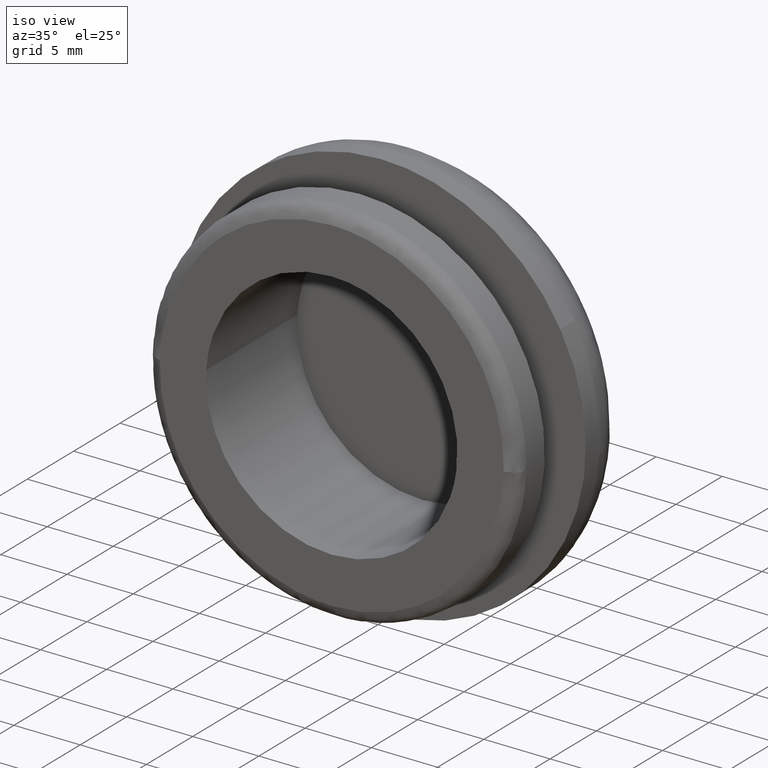
[diagram: clean part render]
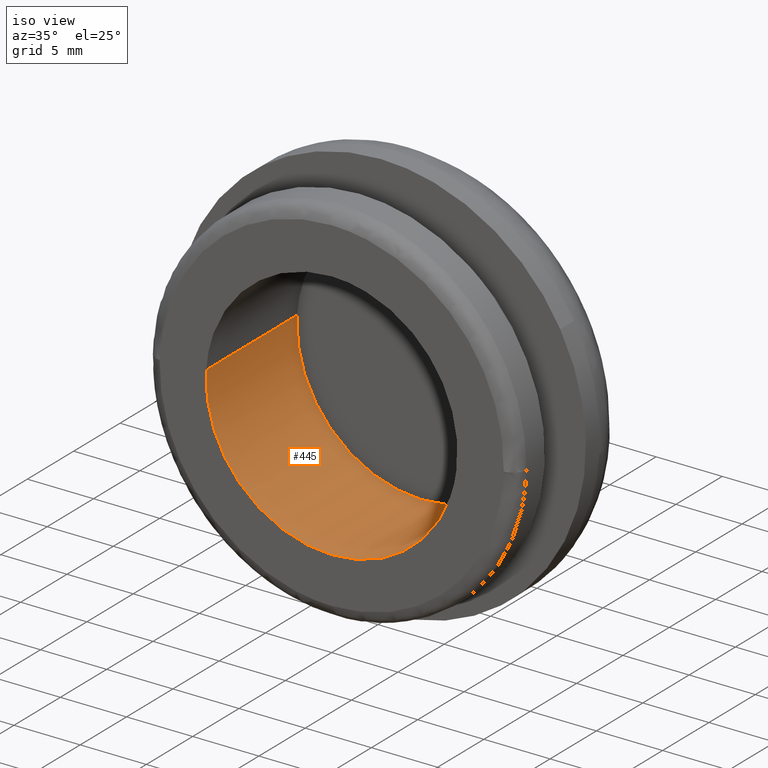
[diagram: same view with one face highlighted and labeled with its STEP entity id]
A machine part, iso view. The second image highlights one B-rep face of the part: STEP entity #445.
In plain terms, the highlighted face is a freeform B-spline surface patch.
Its self-contained STEP definition (entity closure, byte-faithful):
#282=CARTESIAN_POINT('',(9.433591982895113,2.238239E-014,-1.121312757485301));
#283=VERTEX_POINT('',#282);
#301=CARTESIAN_POINT('',(-9.482280755237859,6.371673E-015,0.579958342329812));
#302=VERTEX_POINT('',#301);
#316=CARTESIAN_POINT('',(-9.482280753140211,9.800000000000001,0.579958376626383));
#317=VERTEX_POINT('',#316);
#318=CARTESIAN_POINT('',(-9.482280753140211,9.800000000000001,0.579958376626383));
#319=CARTESIAN_POINT('',(-9.482280755237859,6.371673E-015,0.579958342329812));
#320=QUASI_UNIFORM_CURVE('',1,(#318,#319),.UNSPECIFIED.,.F.,.U.);
#321=EDGE_CURVE('',#317,#302,#320,.T.);
#338=CARTESIAN_POINT('',(9.433591964607842,9.800000000000001,-1.121312911337627));
#339=VERTEX_POINT('',#338);
#355=CARTESIAN_POINT('',(9.433591964607842,9.800000000000001,-1.121312911337627));
#356=CARTESIAN_POINT('',(9.433591982895113,2.238239E-014,-1.121312757485301));
#357=QUASI_UNIFORM_CURVE('',1,(#355,#356),.UNSPECIFIED.,.F.,.U.);
#358=EDGE_CURVE('',#339,#283,#357,.T.);
#363=CARTESIAN_POINT('',(-9.482280585007734,10.045000000000000,0.579961125581141));
#364=CARTESIAN_POINT('',(-10.062241710588875,10.045000000000003,-8.902319459426593));
#365=CARTESIAN_POINT('',(-0.579961125581141,10.045000000000000,-9.482280585007734));
#366=CARTESIAN_POINT('',(8.374663162975260,10.045000000000002,-10.029968868959012));
#367=CARTESIAN_POINT('',(9.433590500454830,10.045000000000005,-1.121325229239206));
#368=CARTESIAN_POINT('',(-9.482280585007734,-0.251125000000002,0.579961125581141));
#369=CARTESIAN_POINT('',(-10.062241710588875,-0.251125000000002,-8.902319459426593));
#370=CARTESIAN_POINT('',(-0.579961125581141,-0.251125000000002,-9.482280585007734));
#371=CARTESIAN_POINT('',(8.374663162975260,-0.251125000000002,-10.029968868959012));
#372=CARTESIAN_POINT('',(9.433590500454830,-0.251125000000002,-1.121325229239206));
#380=(BOUNDED_SURFACE()B_SPLINE_SURFACE(2,1,((#363,#368),(#364,#369),(#365,#370),(#366,#371),(#367,#372)),.UNSPECIFIED.,.F.,.F.,.U.)B_SPLINE_SURFACE_WITH_KNOTS((3,2,3),(2,2),(0.0,15.740115370177611,30.850626125548111),(0.0,10.296125000000011),.UNSPECIFIED.)GEOMETRIC_REPRESENTATION_ITEM()RATIONAL_B_SPLINE_SURFACE(((1.0,1.0),(0.707106781186548,0.707106781186548),(1.0,1.0),(0.718822509939086,0.718822509939086),(0.977505800795127,0.977505800795127)))REPRESENTATION_ITEM('')SURFACE());
#381=CARTESIAN_POINT('',(0.0,-1.745064E-015,-9.500000000000000));
#382=VERTEX_POINT('',#381);
#383=CARTESIAN_POINT('',(0.0,-1.745064E-015,-9.500000000000000));
#384=CARTESIAN_POINT('',(8.437669230144374,-1.745064E-015,-9.499999999999998));
#385=CARTESIAN_POINT('',(9.433591982895113,2.238239E-014,-1.121312757485301));
#393=(BOUNDED_CURVE()B_SPLINE_CURVE(2,(#383,#384,#385),.UNSPECIFIED.,.F.,.U.)B_SPLINE_CURVE_WITH_KNOTS((3,3),(0.0,0.229562696947761),.UNSPECIFIED.)CURVE()GEOMETRIC_REPRESENTATION_ITEM()RATIONAL_B_SPLINE_CURVE((1.0,0.731050571085892,0.956027192124447))REPRESENTATION_ITEM(''));
#394=EDGE_CURVE('',#382,#283,#393,.T.);
#395=ORIENTED_EDGE('',*,*,#394,.T.);
#396=ORIENTED_EDGE('',*,*,#358,.F.);
#397=CARTESIAN_POINT('',(0.0,9.799999999999999,-9.500000000000000));
#398=VERTEX_POINT('',#397);
#399=CARTESIAN_POINT('',(0.0,9.799999999999999,-9.500000000000000));
#400=CARTESIAN_POINT('',(8.437669091565855,9.799999999999999,-9.500000000000000));
#401=CARTESIAN_POINT('',(9.433591964607842,9.800000000000001,-1.121312911337627));
#409=(BOUNDED_CURVE()B_SPLINE_CURVE(2,(#399,#400,#401),.UNSPECIFIED.,.F.,.U.)B_SPLINE_CURVE_WITH_KNOTS((3,3),(0.0,0.229562694191489),.UNSPECIFIED.)CURVE()GEOMETRIC_REPRESENTATION_ITEM()RATIONAL_B_SPLINE_CURVE((1.0,0.731050574315066,0.956027186722028))REPRESENTATION_ITEM(''));
#410=EDGE_CURVE('',#398,#339,#409,.T.);
#411=ORIENTED_EDGE('',*,*,#410,.F.);
#412=CARTESIAN_POINT('',(-9.482280753140211,9.799999999999999,0.579958376626383));
#413=CARTESIAN_POINT('',(-9.500000000000002,9.799999999999999,0.290249873005346));
#414=CARTESIAN_POINT('',(-9.500000000000000,9.799999999999999,-3.061516E-016));
#415=CARTESIAN_POINT('',(-9.500000000000000,9.799999999999999,-9.500000000000000));
#416=CARTESIAN_POINT('',(0.0,9.799999999999999,-9.500000000000000));
#424=(BOUNDED_CURVE()B_SPLINE_CURVE(2,(#412,#413,#414,#415,#416),.UNSPECIFIED.,.F.,.U.)B_SPLINE_CURVE_WITH_KNOTS((3,2,3),(0.739333012264042,0.750000000000000,1.0),.UNSPECIFIED.)CURVE()GEOMETRIC_REPRESENTATION_ITEM()RATIONAL_B_SPLINE_CURVE((0.976072148880051,0.987502846507886,1.0,0.707106781186548,1.0))REPRESENTATION_ITEM(''));
#425=EDGE_CURVE('',#317,#398,#424,.T.);
#426=ORIENTED_EDGE('',*,*,#425,.F.);
#427=ORIENTED_EDGE('',*,*,#321,.T.);
#428=CARTESIAN_POINT('',(-9.482280755237859,6.371673E-015,0.579958342329812));
#429=CARTESIAN_POINT('',(-9.500000000000000,-1.745064E-015,0.290249855808978));
#430=CARTESIAN_POINT('',(-9.500000000000000,-1.745064E-015,-3.061516E-016));
#431=CARTESIAN_POINT('',(-9.500000000000000,-1.745064E-015,-9.500000000000000));
#432=CARTESIAN_POINT('',(0.0,-1.745064E-015,-9.500000000000000));
#440=(BOUNDED_CURVE()B_SPLINE_CURVE(2,(#428,#429,#430,#431,#432),.UNSPECIFIED.,.F.,.U.)B_SPLINE_CURVE_WITH_KNOTS((3,2,3),(0.739333012888128,0.750000000000000,1.0),.UNSPECIFIED.)CURVE()GEOMETRIC_REPRESENTATION_ITEM()RATIONAL_B_SPLINE_CURVE((0.976072150217588,0.987502847239049,1.0,0.707106781186548,1.0))REPRESENTATION_ITEM(''));
#441=EDGE_CURVE('',#302,#382,#440,.T.);
#442=ORIENTED_EDGE('',*,*,#441,.T.);
#443=EDGE_LOOP('',(#395,#396,#411,#426,#427,#442));
#444=FACE_OUTER_BOUND('',#443,.T.);
#445=ADVANCED_FACE('',(#444),#380,.F.);